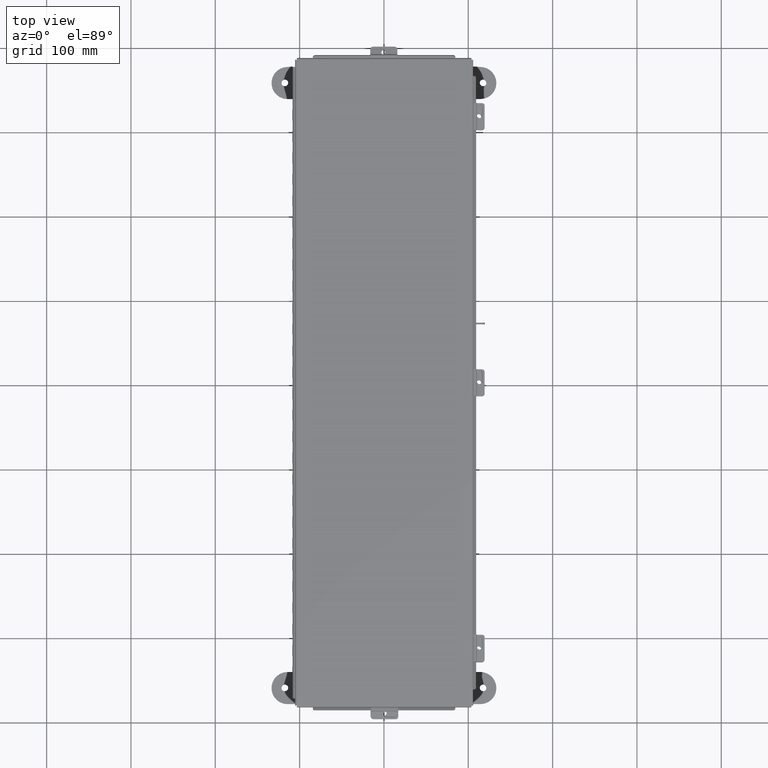
[diagram: clean part render]
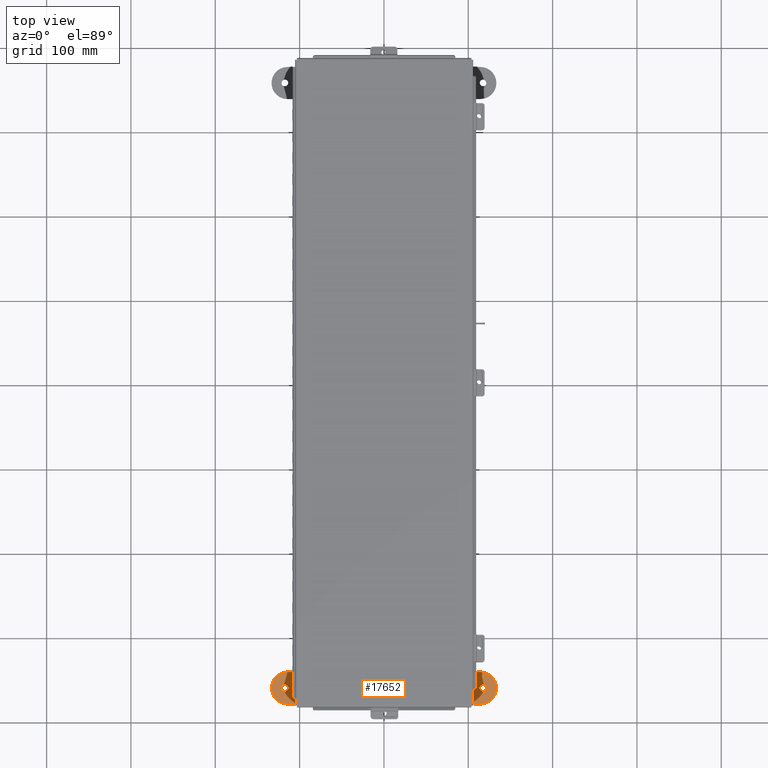
[diagram: same view with one face highlighted and labeled with its STEP entity id]
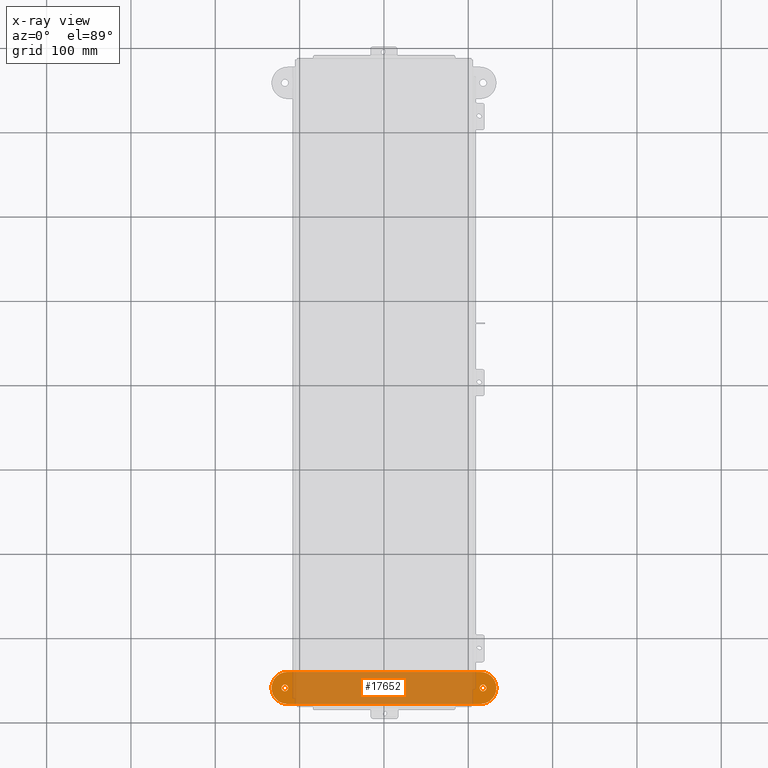
[diagram: x-ray of the same camera — body ghosted, the highlighted face saturated]
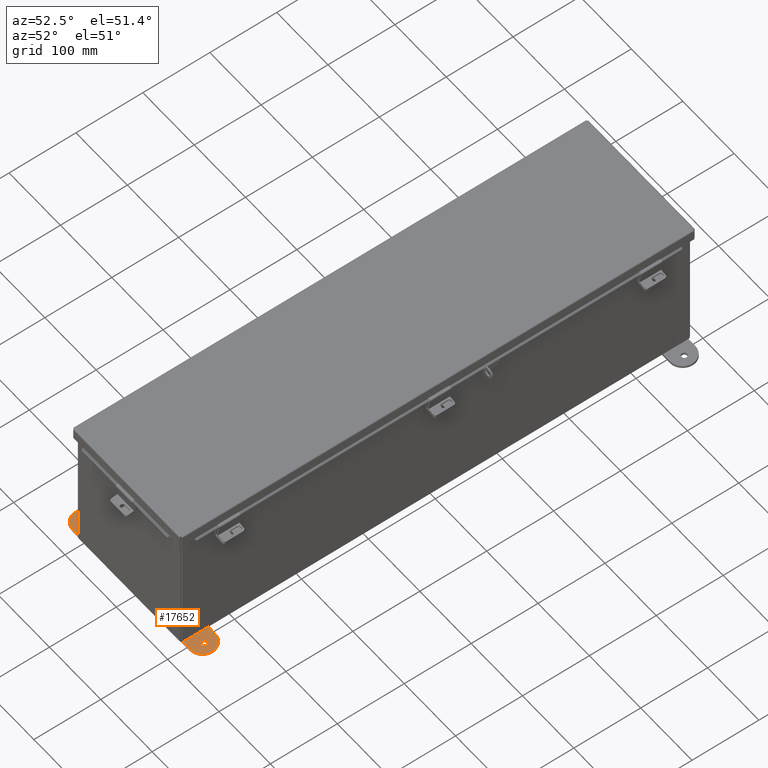
[diagram: same view with one face highlighted and labeled with its STEP entity id]
A machine part, top view. The second image highlights one B-rep face of the part: STEP entity #17652.
The next image is the same camera in x-ray: the body ghosted, the highlighted face saturated — about 84% of this face is hidden behind the body in this view.
A second angle (auxiliary view) of the same face is appended — the face is thin or edge-on in the first view.
In plain terms, the highlighted planar face has unit normal (0, 0, -1).
Its self-contained STEP definition (entity closure, byte-faithful):
#24 = DIRECTION ( 'NONE',  ( 0.0000000000000000000, 0.0000000000000000000, -1.000000000000000000 ) ) ;
#83 = EDGE_CURVE ( 'NONE', #2448, #1467, #21524, .T. ) ;
#158 = CARTESIAN_POINT ( 'NONE',  ( 4.499999999999999100, 1.162094064949613600, 0.0000000000000000000 ) ) ;
#485 = AXIS2_PLACEMENT_3D ( 'NONE', #7346, #14068, #24052 ) ;
#772 = EDGE_CURVE ( 'NONE', #24703, #1525, #18986, .T. ) ;
#807 = PLANE ( 'NONE',  #1285 ) ;
#1134 = AXIS2_PLACEMENT_3D ( 'NONE', #23651, #10969, #23872 ) ;
#1272 = EDGE_LOOP ( 'NONE', ( #21929, #17913 ) ) ;
#1285 = AXIS2_PLACEMENT_3D ( 'NONE', #4061, #4717, #17735 ) ;
#1467 = VERTEX_POINT ( 'NONE', #21012 ) ;
#1515 = DIRECTION ( 'NONE',  ( -1.000000000000000000, 0.0000000000000000000, 0.0000000000000000000 ) ) ;
#1525 = VERTEX_POINT ( 'NONE', #17297 ) ;
#1644 = CARTESIAN_POINT ( 'NONE',  ( -4.499999999999999100, 1.162094064949611600, 0.0000000000000000000 ) ) ;
#1688 = AXIS2_PLACEMENT_3D ( 'NONE', #23813, #23600, #23715 ) ;
#2142 = EDGE_CURVE ( 'NONE', #1525, #9885, #13882, .T. ) ;
#2436 = EDGE_CURVE ( 'NONE', #9885, #23066, #12399, .T. ) ;
#2448 = VERTEX_POINT ( 'NONE', #7932 ) ;
#2478 = EDGE_CURVE ( 'NONE', #23066, #22694, #12257, .T. ) ;
#2779 = EDGE_CURVE ( 'NONE', #22694, #24703, #10886, .T. ) ;
#2783 = EDGE_CURVE ( 'NONE', #1467, #2448, #10767, .T. ) ;
#3065 = EDGE_CURVE ( 'NONE', #23657, #15520, #9447, .T. ) ;
#3571 = DIRECTION ( 'NONE',  ( 0.0000000000000000000, 0.0000000000000000000, 1.000000000000000000 ) ) ;
#3623 = FACE_OUTER_BOUND ( 'NONE', #25729, .T. ) ;
#4061 = CARTESIAN_POINT ( 'NONE',  ( 4.499999999999999100, 0.4120940649496132600, 0.0000000000000000000 ) ) ;
#4717 = DIRECTION ( 'NONE',  ( 0.0000000000000000000, 0.0000000000000000000, -1.000000000000000000 ) ) ;
#6283 = CARTESIAN_POINT ( 'NONE',  ( 4.499999999999999100, 0.4120940649496132600, 0.0000000000000000000 ) ) ;
#6368 = ORIENTED_EDGE ( 'NONE', *, *, #3065, .T. ) ;
#6878 = DIRECTION ( 'NONE',  ( -1.000000000000000000, -1.214154663850783900E-016, 0.0000000000000000000 ) ) ;
#7346 = CARTESIAN_POINT ( 'NONE',  ( 4.499999999999999100, 0.4120940649496132600, 0.0000000000000000000 ) ) ;
#7840 = CARTESIAN_POINT ( 'NONE',  ( 4.468500000000000600, 0.4120940649496089300, 0.0000000000000000000 ) ) ;
#7932 = CARTESIAN_POINT ( 'NONE',  ( -4.781499999999999400, 0.4120940649496089300, 0.0000000000000000000 ) ) ;
#9447 = CIRCLE ( 'NONE', #1134, 0.1564999999999992800 ) ;
#9472 = AXIS2_PLACEMENT_3D ( 'NONE', #14663, #13787, #13193 ) ;
#9885 = VERTEX_POINT ( 'NONE', #158 ) ;
#10739 = VECTOR ( 'NONE', #15289, 39.37007874015748100 ) ;
#10767 = CIRCLE ( 'NONE', #20087, 0.1564999999999992800 ) ;
#10886 = LINE ( 'NONE', #13472, #10739 ) ;
#10969 = DIRECTION ( 'NONE',  ( 0.0000000000000000000, 0.0000000000000000000, -1.000000000000000000 ) ) ;
#11216 = ORIENTED_EDGE ( 'NONE', *, *, #2436, .T. ) ;
#11707 = ORIENTED_EDGE ( 'NONE', *, *, #2142, .T. ) ;
#11977 = CARTESIAN_POINT ( 'NONE',  ( 4.625000000000000000, 0.4120940649496089300, 0.0000000000000000000 ) ) ;
#12257 = CIRCLE ( 'NONE', #9472, 0.7499999999999998900 ) ;
#12332 = VECTOR ( 'NONE', #6878, 39.37007874015748100 ) ;
#12399 = LINE ( 'NONE', #1644, #12332 ) ;
#12546 = CARTESIAN_POINT ( 'NONE',  ( -4.499999999999999100, 1.162094064949611600, 0.0000000000000000000 ) ) ;
#13193 = DIRECTION ( 'NONE',  ( 1.000000000000000000, 0.0000000000000000000, 0.0000000000000000000 ) ) ;
#13277 = AXIS2_PLACEMENT_3D ( 'NONE', #6283, #3571, #1515 ) ;
#13472 = CARTESIAN_POINT ( 'NONE',  ( -4.499999999999999100, -0.3379059350503871900, 0.0000000000000000000 ) ) ;
#13787 = DIRECTION ( 'NONE',  ( 0.0000000000000000000, 0.0000000000000000000, 1.000000000000000000 ) ) ;
#13882 = CIRCLE ( 'NONE', #13277, 0.7500000000000010000 ) ;
#13961 = DIRECTION ( 'NONE',  ( -1.000000000000000000, 0.0000000000000000000, 0.0000000000000000000 ) ) ;
#14068 = DIRECTION ( 'NONE',  ( 0.0000000000000000000, 0.0000000000000000000, 1.000000000000000000 ) ) ;
#14208 = FACE_BOUND ( 'NONE', #1272, .T. ) ;
#14215 = CIRCLE ( 'NONE', #21807, 0.1564999999999992800 ) ;
#14663 = CARTESIAN_POINT ( 'NONE',  ( -4.499999999999999100, 0.4120940649496132600, 0.0000000000000000000 ) ) ;
#15289 = DIRECTION ( 'NONE',  ( 1.000000000000000000, -1.214154663850783900E-016, 0.0000000000000000000 ) ) ;
#15520 = VERTEX_POINT ( 'NONE', #24473 ) ;
#15762 = ORIENTED_EDGE ( 'NONE', *, *, #2478, .T. ) ;
#16496 = DIRECTION ( 'NONE',  ( 0.0000000000000000000, 0.0000000000000000000, 1.000000000000000000 ) ) ;
#16518 = CARTESIAN_POINT ( 'NONE',  ( 4.499999999999999100, -0.3379059350503894100, 0.0000000000000000000 ) ) ;
#17297 = CARTESIAN_POINT ( 'NONE',  ( 5.250000000000000900, 0.4120940649496132600, 0.0000000000000000000 ) ) ;
#17631 = CARTESIAN_POINT ( 'NONE',  ( -4.625000000000000000, 0.4120940649496089300, 0.0000000000000000000 ) ) ;
#17652 = ADVANCED_FACE ( 'NONE', ( #3623, #14208, #18927 ), #807, .F. ) ;
#17735 = DIRECTION ( 'NONE',  ( -1.000000000000000000, 0.0000000000000000000, 0.0000000000000000000 ) ) ;
#17913 = ORIENTED_EDGE ( 'NONE', *, *, #83, .F. ) ;
#18633 = ORIENTED_EDGE ( 'NONE', *, *, #772, .T. ) ;
#18888 = EDGE_LOOP ( 'NONE', ( #21369, #6368 ) ) ;
#18927 = FACE_BOUND ( 'NONE', #18888, .T. ) ;
#18986 = CIRCLE ( 'NONE', #485, 0.7500000000000010000 ) ;
#20087 = AXIS2_PLACEMENT_3D ( 'NONE', #17631, #16496, #21004 ) ;
#21004 = DIRECTION ( 'NONE',  ( 1.000000000000000000, 0.0000000000000000000, 0.0000000000000000000 ) ) ;
#21012 = CARTESIAN_POINT ( 'NONE',  ( -4.468500000000000600, 0.4120940649496089300, 0.0000000000000000000 ) ) ;
#21369 = ORIENTED_EDGE ( 'NONE', *, *, #25770, .T. ) ;
#21524 = CIRCLE ( 'NONE', #1688, 0.1564999999999992800 ) ;
#21807 = AXIS2_PLACEMENT_3D ( 'NONE', #11977, #24, #13961 ) ;
#21929 = ORIENTED_EDGE ( 'NONE', *, *, #2783, .F. ) ;
#22694 = VERTEX_POINT ( 'NONE', #24966 ) ;
#23066 = VERTEX_POINT ( 'NONE', #12546 ) ;
#23600 = DIRECTION ( 'NONE',  ( 0.0000000000000000000, 0.0000000000000000000, 1.000000000000000000 ) ) ;
#23651 = CARTESIAN_POINT ( 'NONE',  ( 4.625000000000000000, 0.4120940649496089300, 0.0000000000000000000 ) ) ;
#23657 = VERTEX_POINT ( 'NONE', #7840 ) ;
#23715 = DIRECTION ( 'NONE',  ( 1.000000000000000000, 0.0000000000000000000, 0.0000000000000000000 ) ) ;
#23813 = CARTESIAN_POINT ( 'NONE',  ( -4.625000000000000000, 0.4120940649496089300, 0.0000000000000000000 ) ) ;
#23872 = DIRECTION ( 'NONE',  ( -1.000000000000000000, 0.0000000000000000000, 0.0000000000000000000 ) ) ;
#24052 = DIRECTION ( 'NONE',  ( -1.000000000000000000, 0.0000000000000000000, 0.0000000000000000000 ) ) ;
#24069 = ORIENTED_EDGE ( 'NONE', *, *, #2779, .T. ) ;
#24473 = CARTESIAN_POINT ( 'NONE',  ( 4.781499999999999400, 0.4120940649496089300, 0.0000000000000000000 ) ) ;
#24703 = VERTEX_POINT ( 'NONE', #16518 ) ;
#24966 = CARTESIAN_POINT ( 'NONE',  ( -4.499999999999999100, -0.3379059350503871900, 0.0000000000000000000 ) ) ;
#25729 = EDGE_LOOP ( 'NONE', ( #18633, #11707, #11216, #15762, #24069 ) ) ;
#25770 = EDGE_CURVE ( 'NONE', #15520, #23657, #14215, .T. ) ;